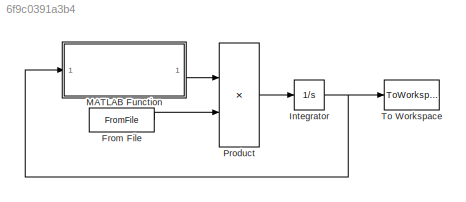
MODEL slx_6f9c0391a3b4
KIND model
CONFIG AbsTol = auto
CONFIG EnableMultiTasking = off
CONFIG FixedStep = 0.01
CONFIG MaxStep = auto
CONFIG MinStep = auto
CONFIG RelTol = 1e-3
CONFIG SampleTimeConstraint = Unconstrained
CONFIG Solver = FixedStepAuto
CONFIG SolverName = FixedStepAuto
CONFIG StartTime = 0.0
CONFIG StopTime = 45.0
BLOCK [FromFile] From File
  FileName = trajectory.mat
  SampleTime = 0
BLOCK [Integrator] Integrator
  InitialCondition = [0;pi/2;pi/2;-pi/2;-pi/2;0]
  Ports = [1, 1]
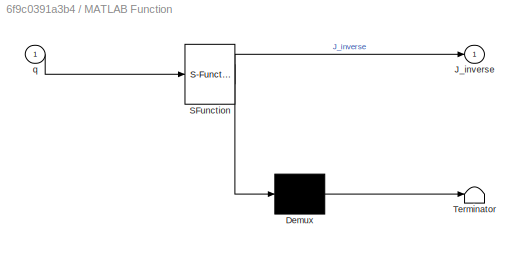
BLOCK [SubSystem] MATLAB Function
  ErrorFcn = Stateflow.Translate.translate
  PermitHierarchicalResolution = ExplicitOnly
  Ports = [1, 1]
  RequestExecContextInheritance = off
  SFBlockType = MATLAB Function
  TreatAsAtomicUnit = on
BLOCK [Demux] MATLAB Function/ Demux 
  Outputs = 1
  Ports = [1, 1]
BLOCK [S-Function] MATLAB Function/ SFunction 
  EnableBusSupport = on
  FunctionName = sf_sfun
  PortCounts = [1 2]
  Ports = [1, 2]
  SFcnIsStateOwnerBlock = off
  SFunctionDeploymentMode = off
  Tag = Stateflow S-Function Iteration 2
BLOCK [Terminator] MATLAB Function/ Terminator 
BLOCK [Outport] MATLAB Function/J_inverse
  IconDisplay = Port number
BLOCK [Inport] MATLAB Function/q
  IconDisplay = Port number
BLOCK [Product] Product
  InputSameDT = off
  Multiplication = Matrix(*)
  OutDataTypeStr = Inherit: Inherit via internal rule
  Ports = [2, 1]
  RndMeth = Floor
  SaturateOnIntegerOverflow = off
BLOCK [ToWorkspace] To Workspace
  FixptAsFi = on
  MaxDataPoints = inf
  Ports = [1]
  SampleTime = -1
  Save2DSignal = 3-D array (concatenate along third dimension)
  VariableName = q_sequence
LINE From File:1 -> Product:2
NET Integrator:1 -> MATLAB Function:1, To Workspace:1
LINE MATLAB Function:1 -> Product:1
LINE Product:1 -> Integrator:1
note: NET lines group one-source signal fan-out (src -> all destinations, sorted); 1:1 wires keep LINE
CHART MATLAB Function states=1 transitions=1
  STATE_LABEL 'eML_blk_kernel()'
  STATE_LABEL 'SCRIPT:\nfunction J_inverse=JacobianMatrix(q)\n    %DH参数表\n    a0=0;       alpha0=0;      d1=0.1807;  \n    a1=0;       alpha1=pi/2;   d2=0;       \n    a2=0.6126;  alpha2=0;      d3=0;       \n    a3=0.5713;  alpha3=0;      d4=0.1741;  \n    a4=0;       alpha4=-pi/2;  d5=0.1198;  \n    a5=0;       alpha5=pi/2;   d6=0.1165;  \n    r=0.22;\n%     r=0.195;\n%     r=0;\n    %\n    T01=[cos(q(1)) -sin(q(1)) 0 0;\n ...<+1488ch>'
